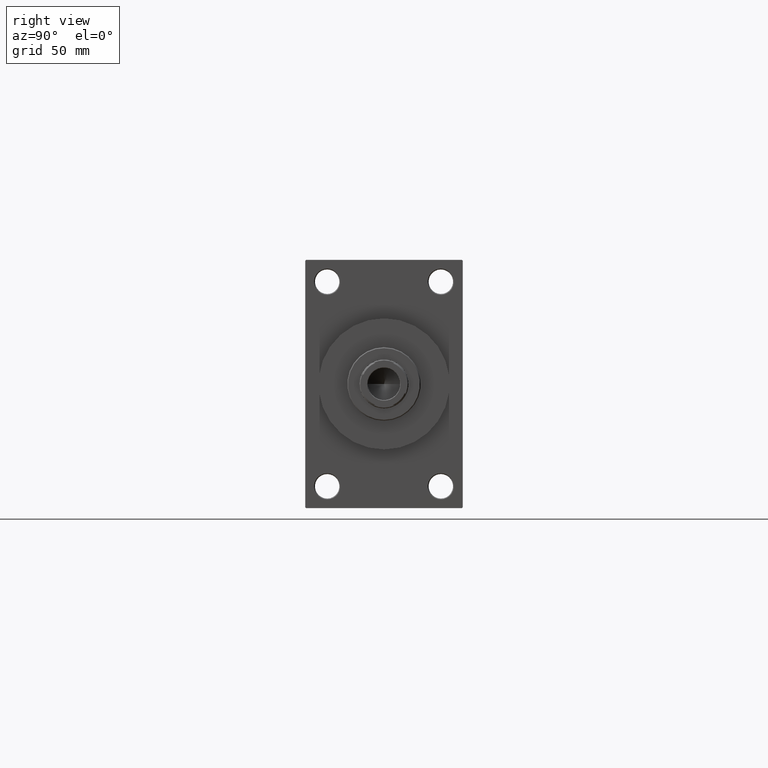
[diagram: clean part render]
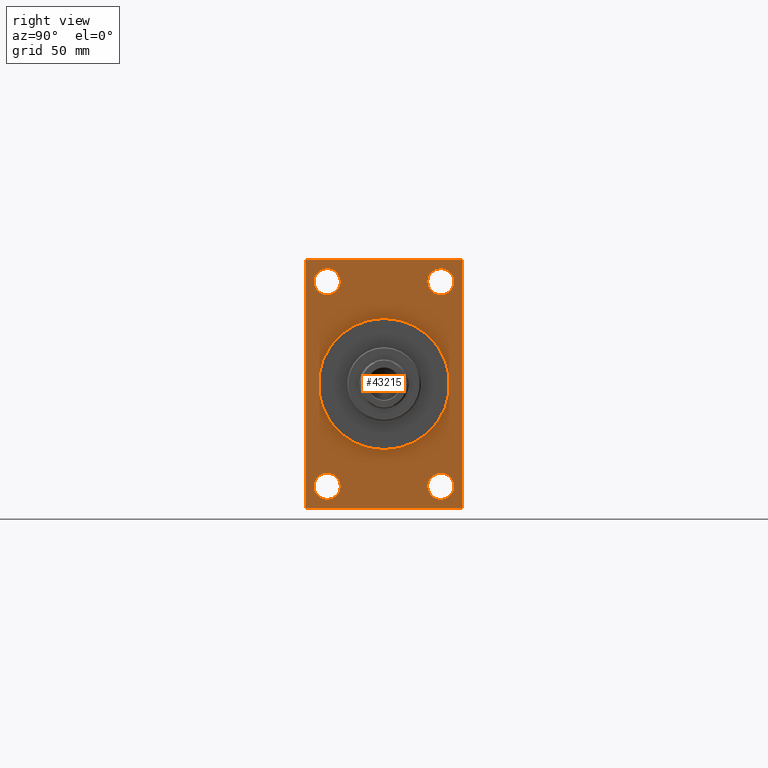
[diagram: same view with one face highlighted and labeled with its STEP entity id]
A machine part, right view. The second image highlights one B-rep face of the part: STEP entity #43215.
In plain terms, the highlighted planar face has unit normal (-1, 0, 0).
Its self-contained STEP definition (entity closure, byte-faithful):
#67 = VERTEX_POINT ( 'NONE', #45687 ) ;
#362 = AXIS2_PLACEMENT_3D ( 'NONE', #24230, #5846, #6778 ) ;
#476 = DIRECTION ( 'NONE',  ( -1.000000000000000000, 0.000000000000000000, -0.000000000000000000 ) ) ;
#938 = VERTEX_POINT ( 'NONE', #44102 ) ;
#1318 = DIRECTION ( 'NONE',  ( 0.000000000000000000, -4.886545002751570165E-17, -1.000000000000000000 ) ) ;
#1822 = CARTESIAN_POINT ( 'NONE',  ( 319.9999999999999432, 0.000000000000000000, 0.000000000000000000 ) ) ;
#1968 = DIRECTION ( 'NONE',  ( 0.000000000000000000, 0.000000000000000000, 1.000000000000000000 ) ) ;
#1996 = AXIS2_PLACEMENT_3D ( 'NONE', #7637, #476, #28901 ) ;
#2252 = EDGE_CURVE ( 'NONE', #39510, #67, #43262, .T. ) ;
#2458 = LINE ( 'NONE', #23732, #7608 ) ;
#2562 = DIRECTION ( 'NONE',  ( 0.000000000000000000, 0.000000000000000000, 1.000000000000000000 ) ) ;
#2686 = DIRECTION ( 'NONE',  ( -0.000000000000000000, 0.7071067811865376918, 0.7071067811865574537 ) ) ;
#3542 = EDGE_CURVE ( 'NONE', #19361, #17667, #30628, .T. ) ;
#4702 = DIRECTION ( 'NONE',  ( 0.000000000000000000, 0.000000000000000000, -1.000000000000000000 ) ) ;
#4731 = VERTEX_POINT ( 'NONE', #28964 ) ;
#5329 = VECTOR ( 'NONE', #20664, 1000.000000000000000 ) ;
#5589 = VECTOR ( 'NONE', #40503, 1000.000000000000000 ) ;
#5846 = DIRECTION ( 'NONE',  ( -1.000000000000000000, 0.000000000000000000, -0.000000000000000000 ) ) ;
#5907 = VERTEX_POINT ( 'NONE', #36245 ) ;
#6778 = DIRECTION ( 'NONE',  ( 0.000000000000000000, 0.000000000000000000, 1.000000000000000000 ) ) ;
#6822 = AXIS2_PLACEMENT_3D ( 'NONE', #26881, #34285, #4702 ) ;
#7257 = EDGE_CURVE ( 'NONE', #13834, #18348, #31132, .T. ) ;
#7608 = VECTOR ( 'NONE', #2686, 999.9999999999998863 ) ;
#7630 = DIRECTION ( 'NONE',  ( 0.000000000000000000, 0.000000000000000000, -1.000000000000000000 ) ) ;
#7637 = CARTESIAN_POINT ( 'NONE',  ( 319.9999999999999432, -32.50000000000000000, -58.49999999999999289 ) ) ;
#7818 = VECTOR ( 'NONE', #43687, 1000.000000000000000 ) ;
#8016 = LINE ( 'NONE', #40955, #14394 ) ;
#8089 = LINE ( 'NONE', #30054, #12113 ) ;
#8309 = DIRECTION ( 'NONE',  ( -1.000000000000000000, 0.000000000000000000, -0.000000000000000000 ) ) ;
#8774 = EDGE_CURVE ( 'NONE', #5907, #17667, #8089, .T. ) ;
#9100 = LINE ( 'NONE', #16495, #17243 ) ;
#9190 = FACE_BOUND ( 'NONE', #41450, .T. ) ;
#9329 = DIRECTION ( 'NONE',  ( 0.000000000000000000, 0.000000000000000000, 1.000000000000000000 ) ) ;
#9420 = DIRECTION ( 'NONE',  ( -0.000000000000000000, 0.000000000000000000, 1.000000000000000000 ) ) ;
#9459 = AXIS2_PLACEMENT_3D ( 'NONE', #38728, #42536, #1968 ) ;
#10118 = FACE_BOUND ( 'NONE', #21714, .T. ) ;
#10190 = CARTESIAN_POINT ( 'NONE',  ( 319.9999999999999432, -32.50000000000000000, 58.50000000000000711 ) ) ;
#10732 = CARTESIAN_POINT ( 'NONE',  ( 319.9999999999999432, -32.50000000000000000, 50.99999999999996447 ) ) ;
#11375 = CARTESIAN_POINT ( 'NONE',  ( 319.9999999999999432, 44.49999999999996447, 71.00000000000000000 ) ) ;
#11446 = ORIENTED_EDGE ( 'NONE', *, *, #45600, .T. ) ;
#11999 = CARTESIAN_POINT ( 'NONE',  ( 319.9999999999999432, 32.50000000000000711, -58.50000000000000000 ) ) ;
#12113 = VECTOR ( 'NONE', #22904, 1000.000000000000000 ) ;
#12244 = DIRECTION ( 'NONE',  ( 0.000000000000000000, 0.000000000000000000, 1.000000000000000000 ) ) ;
#13468 = CARTESIAN_POINT ( 'NONE',  ( 319.9999999999999432, 0.000000000000000000, 0.000000000000000000 ) ) ;
#13710 = FACE_BOUND ( 'NONE', #23613, .T. ) ;
#13747 = AXIS2_PLACEMENT_3D ( 'NONE', #24719, #39278, #28772 ) ;
#13834 = VERTEX_POINT ( 'NONE', #39827 ) ;
#13887 = ORIENTED_EDGE ( 'NONE', *, *, #2252, .T. ) ;
#14182 = ORIENTED_EDGE ( 'NONE', *, *, #43159, .F. ) ;
#14394 = VECTOR ( 'NONE', #1318, 1000.000000000000000 ) ;
#16495 = CARTESIAN_POINT ( 'NONE',  ( 319.9999999999999432, -44.99999999999997158, 70.49999999999998579 ) ) ;
#16652 = DIRECTION ( 'NONE',  ( -1.000000000000000000, 0.000000000000000000, -0.000000000000000000 ) ) ;
#16934 = EDGE_LOOP ( 'NONE', ( #36826, #33291 ) ) ;
#17065 = CARTESIAN_POINT ( 'NONE',  ( 319.9999999999999432, 45.00000000000002132, 71.00000000000000000 ) ) ;
#17186 = CARTESIAN_POINT ( 'NONE',  ( 319.9999999999999432, 32.50000000000000711, 58.50000000000000711 ) ) ;
#17243 = VECTOR ( 'NONE', #38939, 1000.000000000000000 ) ;
#17272 = DIRECTION ( 'NONE',  ( -1.000000000000000000, 0.000000000000000000, -0.000000000000000000 ) ) ;
#17357 = AXIS2_PLACEMENT_3D ( 'NONE', #29557, #8309, #40539 ) ;
#17667 = VERTEX_POINT ( 'NONE', #20836 ) ;
#17733 = EDGE_CURVE ( 'NONE', #25505, #19361, #36284, .T. ) ;
#17873 = CIRCLE ( 'NONE', #22486, 37.50000000000000711 ) ;
#17934 = CARTESIAN_POINT ( 'NONE',  ( 319.9999999999999432, 44.49999999999996447, 71.00000000000000000 ) ) ;
#18348 = VERTEX_POINT ( 'NONE', #42808 ) ;
#18795 = CIRCLE ( 'NONE', #1996, 7.500000000000055067 ) ;
#18898 = CARTESIAN_POINT ( 'NONE',  ( 319.9999999999999432, -44.99999999999997158, 70.49999999999998579 ) ) ;
#19361 = VERTEX_POINT ( 'NONE', #32363 ) ;
#19410 = DIRECTION ( 'NONE',  ( 0.000000000000000000, 0.7071067811865965336, -0.7071067811864985009 ) ) ;
#19719 = AXIS2_PLACEMENT_3D ( 'NONE', #11999, #22770, #12244 ) ;
#20014 = CARTESIAN_POINT ( 'NONE',  ( 319.9999999999999432, 32.50000000000000711, 50.99999999999996447 ) ) ;
#20222 = ORIENTED_EDGE ( 'NONE', *, *, #44834, .T. ) ;
#20310 = CARTESIAN_POINT ( 'NONE',  ( 319.9999999999999432, -32.50000000000000000, 66.00000000000005684 ) ) ;
#20664 = DIRECTION ( 'NONE',  ( 0.000000000000000000, -1.000000000000000000, -1.541976423090495387E-16 ) ) ;
#20836 = CARTESIAN_POINT ( 'NONE',  ( 319.9999999999999432, -44.49999999999988631, -71.00000000000000000 ) ) ;
#21714 = EDGE_LOOP ( 'NONE', ( #37107, #32046 ) ) ;
#22476 = EDGE_CURVE ( 'NONE', #25809, #27845, #44086, .T. ) ;
#22486 = AXIS2_PLACEMENT_3D ( 'NONE', #1822, #38121, #7630 ) ;
#22770 = DIRECTION ( 'NONE',  ( -1.000000000000000000, 0.000000000000000000, -0.000000000000000000 ) ) ;
#22821 = CARTESIAN_POINT ( 'NONE',  ( 319.9999999999999432, -32.50000000000000000, -50.99999999999992895 ) ) ;
#22827 = AXIS2_PLACEMENT_3D ( 'NONE', #10190, #16652, #2562 ) ;
#22904 = DIRECTION ( 'NONE',  ( 0.000000000000000000, -1.000000000000000000, -1.541976423090495633E-16 ) ) ;
#23037 = ORIENTED_EDGE ( 'NONE', *, *, #33138, .T. ) ;
#23611 = CIRCLE ( 'NONE', #22827, 7.500000000000047962 ) ;
#23613 = EDGE_LOOP ( 'NONE', ( #43305, #11446 ) ) ;
#23732 = CARTESIAN_POINT ( 'NONE',  ( 319.9999999999999432, 45.00000000000001421, -70.49999999999997158 ) ) ;
#23770 = FACE_BOUND ( 'NONE', #44309, .T. ) ;
#24230 = CARTESIAN_POINT ( 'NONE',  ( 319.9999999999999432, -32.50000000000000000, 58.50000000000000711 ) ) ;
#24530 = ORIENTED_EDGE ( 'NONE', *, *, #32180, .T. ) ;
#24719 = CARTESIAN_POINT ( 'NONE',  ( 319.9999999999999432, 32.50000000000000711, -58.50000000000000000 ) ) ;
#25395 = ORIENTED_EDGE ( 'NONE', *, *, #17733, .T. ) ;
#25505 = VERTEX_POINT ( 'NONE', #18898 ) ;
#25762 = EDGE_CURVE ( 'NONE', #938, #4731, #17873, .T. ) ;
#25809 = VERTEX_POINT ( 'NONE', #26479 ) ;
#26479 = CARTESIAN_POINT ( 'NONE',  ( 319.9999999999999432, 45.00000000000002132, 70.50000000000000000 ) ) ;
#26514 = ORIENTED_EDGE ( 'NONE', *, *, #33071, .T. ) ;
#26881 = CARTESIAN_POINT ( 'NONE',  ( 319.9999999999999432, 0.000000000000000000, 0.000000000000000000 ) ) ;
#27342 = FACE_BOUND ( 'NONE', #16934, .T. ) ;
#27422 = CIRCLE ( 'NONE', #6822, 37.50000000000000711 ) ;
#27741 = EDGE_CURVE ( 'NONE', #44196, #41219, #39209, .T. ) ;
#27845 = VERTEX_POINT ( 'NONE', #17934 ) ;
#28295 = EDGE_CURVE ( 'NONE', #32173, #36052, #43023, .T. ) ;
#28299 = LINE ( 'NONE', #17065, #5329 ) ;
#28772 = DIRECTION ( 'NONE',  ( 0.000000000000000000, 0.000000000000000000, 1.000000000000000000 ) ) ;
#28901 = DIRECTION ( 'NONE',  ( 0.000000000000000000, 0.000000000000000000, 1.000000000000000000 ) ) ;
#28964 = CARTESIAN_POINT ( 'NONE',  ( 319.9999999999999432, 4.592425496802575156E-15, -37.50000000000000711 ) ) ;
#29361 = CARTESIAN_POINT ( 'NONE',  ( 319.9999999999999432, -44.99999999999997158, 70.99999999999998579 ) ) ;
#29557 = CARTESIAN_POINT ( 'NONE',  ( 319.9999999999999432, -32.50000000000000000, -58.49999999999999289 ) ) ;
#29787 = CARTESIAN_POINT ( 'NONE',  ( 319.9999999999999432, -44.49999999999995026, 70.99999999999998579 ) ) ;
#30054 = CARTESIAN_POINT ( 'NONE',  ( 319.9999999999999432, 45.00000000000001421, -70.99999999999998579 ) ) ;
#30351 = VECTOR ( 'NONE', #19410, 1000.000000000000114 ) ;
#30628 = LINE ( 'NONE', #37801, #30351 ) ;
#31132 = CIRCLE ( 'NONE', #19719, 7.500000000000062172 ) ;
#31236 = AXIS2_PLACEMENT_3D ( 'NONE', #13468, #17272, #9420 ) ;
#31391 = FACE_OUTER_BOUND ( 'NONE', #36255, .T. ) ;
#32046 = ORIENTED_EDGE ( 'NONE', *, *, #44360, .F. ) ;
#32173 = VERTEX_POINT ( 'NONE', #20310 ) ;
#32180 = EDGE_CURVE ( 'NONE', #41219, #44196, #43916, .T. ) ;
#32363 = CARTESIAN_POINT ( 'NONE',  ( 319.9999999999999432, -44.99999999999997158, -70.50000000000000000 ) ) ;
#32949 = CARTESIAN_POINT ( 'NONE',  ( 319.9999999999999432, 32.50000000000000711, 66.00000000000005684 ) ) ;
#33071 = EDGE_CURVE ( 'NONE', #38338, #25505, #9100, .T. ) ;
#33138 = EDGE_CURVE ( 'NONE', #67, #39510, #18795, .T. ) ;
#33291 = ORIENTED_EDGE ( 'NONE', *, *, #28295, .T. ) ;
#34285 = DIRECTION ( 'NONE',  ( 1.000000000000000000, 0.000000000000000000, 0.000000000000000000 ) ) ;
#34333 = CIRCLE ( 'NONE', #13747, 7.500000000000062172 ) ;
#34737 = PLANE ( 'NONE',  #31236 ) ;
#36046 = ORIENTED_EDGE ( 'NONE', *, *, #3542, .T. ) ;
#36052 = VERTEX_POINT ( 'NONE', #10732 ) ;
#36245 = CARTESIAN_POINT ( 'NONE',  ( 319.9999999999999432, 44.50000000000001421, -70.99999999999998579 ) ) ;
#36255 = EDGE_LOOP ( 'NONE', ( #25395, #36046, #43494, #20222, #14182, #37431, #46957, #26514 ) ) ;
#36284 = LINE ( 'NONE', #29361, #7818 ) ;
#36826 = ORIENTED_EDGE ( 'NONE', *, *, #43541, .T. ) ;
#37107 = ORIENTED_EDGE ( 'NONE', *, *, #25762, .F. ) ;
#37431 = ORIENTED_EDGE ( 'NONE', *, *, #22476, .T. ) ;
#37801 = CARTESIAN_POINT ( 'NONE',  ( 319.9999999999999432, -44.49999999999991473, -71.00000000000000000 ) ) ;
#38121 = DIRECTION ( 'NONE',  ( 1.000000000000000000, 0.000000000000000000, 0.000000000000000000 ) ) ;
#38338 = VERTEX_POINT ( 'NONE', #29787 ) ;
#38728 = CARTESIAN_POINT ( 'NONE',  ( 319.9999999999999432, 32.50000000000000711, 58.50000000000000711 ) ) ;
#38939 = DIRECTION ( 'NONE',  ( -0.000000000000000000, -0.7071067811865426878, -0.7071067811865524577 ) ) ;
#39209 = CIRCLE ( 'NONE', #9459, 7.500000000000047962 ) ;
#39278 = DIRECTION ( 'NONE',  ( -1.000000000000000000, 0.000000000000000000, -0.000000000000000000 ) ) ;
#39347 = AXIS2_PLACEMENT_3D ( 'NONE', #17186, #42046, #9329 ) ;
#39510 = VERTEX_POINT ( 'NONE', #22821 ) ;
#39827 = CARTESIAN_POINT ( 'NONE',  ( 319.9999999999999432, 32.50000000000000711, -66.00000000000005684 ) ) ;
#40503 = DIRECTION ( 'NONE',  ( 0.000000000000000000, -0.7071067811865867636, 0.7071067811865081598 ) ) ;
#40539 = DIRECTION ( 'NONE',  ( 0.000000000000000000, 0.000000000000000000, 1.000000000000000000 ) ) ;
#40955 = CARTESIAN_POINT ( 'NONE',  ( 319.9999999999999432, 45.00000000000002132, 71.00000000000000000 ) ) ;
#41219 = VERTEX_POINT ( 'NONE', #32949 ) ;
#41450 = EDGE_LOOP ( 'NONE', ( #23037, #13887 ) ) ;
#42046 = DIRECTION ( 'NONE',  ( -1.000000000000000000, 0.000000000000000000, -0.000000000000000000 ) ) ;
#42536 = DIRECTION ( 'NONE',  ( -1.000000000000000000, 0.000000000000000000, -0.000000000000000000 ) ) ;
#42808 = CARTESIAN_POINT ( 'NONE',  ( 319.9999999999999432, 32.50000000000000711, -50.99999999999993605 ) ) ;
#43023 = CIRCLE ( 'NONE', #362, 7.500000000000047962 ) ;
#43159 = EDGE_CURVE ( 'NONE', #25809, #45389, #8016, .T. ) ;
#43215 = ADVANCED_FACE ( 'NONE', ( #27342, #9190, #13710, #23770, #10118, #31391 ), #34737, .F. ) ;
#43262 = CIRCLE ( 'NONE', #17357, 7.500000000000055067 ) ;
#43305 = ORIENTED_EDGE ( 'NONE', *, *, #7257, .T. ) ;
#43443 = ORIENTED_EDGE ( 'NONE', *, *, #27741, .T. ) ;
#43494 = ORIENTED_EDGE ( 'NONE', *, *, #8774, .F. ) ;
#43541 = EDGE_CURVE ( 'NONE', #36052, #32173, #23611, .T. ) ;
#43687 = DIRECTION ( 'NONE',  ( 0.000000000000000000, 0.000000000000000000, -1.000000000000000000 ) ) ;
#43916 = CIRCLE ( 'NONE', #39347, 7.500000000000047962 ) ;
#44086 = LINE ( 'NONE', #11375, #5589 ) ;
#44102 = CARTESIAN_POINT ( 'NONE',  ( 319.9999999999999432, 0.000000000000000000, 37.50000000000000711 ) ) ;
#44196 = VERTEX_POINT ( 'NONE', #20014 ) ;
#44309 = EDGE_LOOP ( 'NONE', ( #43443, #24530 ) ) ;
#44360 = EDGE_CURVE ( 'NONE', #4731, #938, #27422, .T. ) ;
#44571 = EDGE_CURVE ( 'NONE', #27845, #38338, #28299, .T. ) ;
#44834 = EDGE_CURVE ( 'NONE', #5907, #45389, #2458, .T. ) ;
#45389 = VERTEX_POINT ( 'NONE', #45507 ) ;
#45507 = CARTESIAN_POINT ( 'NONE',  ( 319.9999999999999432, 45.00000000000001421, -70.49999999999997158 ) ) ;
#45600 = EDGE_CURVE ( 'NONE', #18348, #13834, #34333, .T. ) ;
#45687 = CARTESIAN_POINT ( 'NONE',  ( 319.9999999999999432, -32.50000000000000000, -66.00000000000004263 ) ) ;
#46957 = ORIENTED_EDGE ( 'NONE', *, *, #44571, .T. ) ;